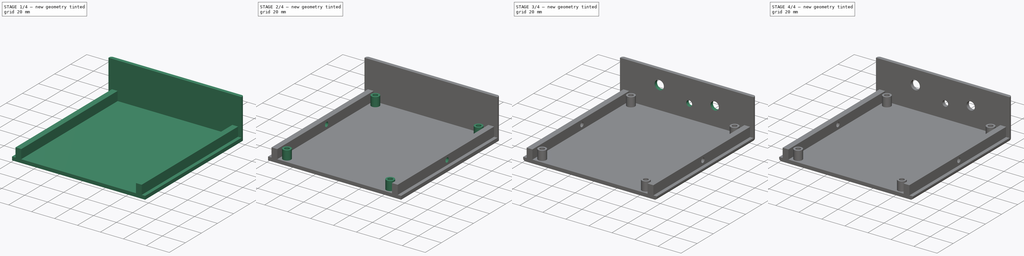
[diagram: build sequence overview — one tinted view per stage of 4, left to right]
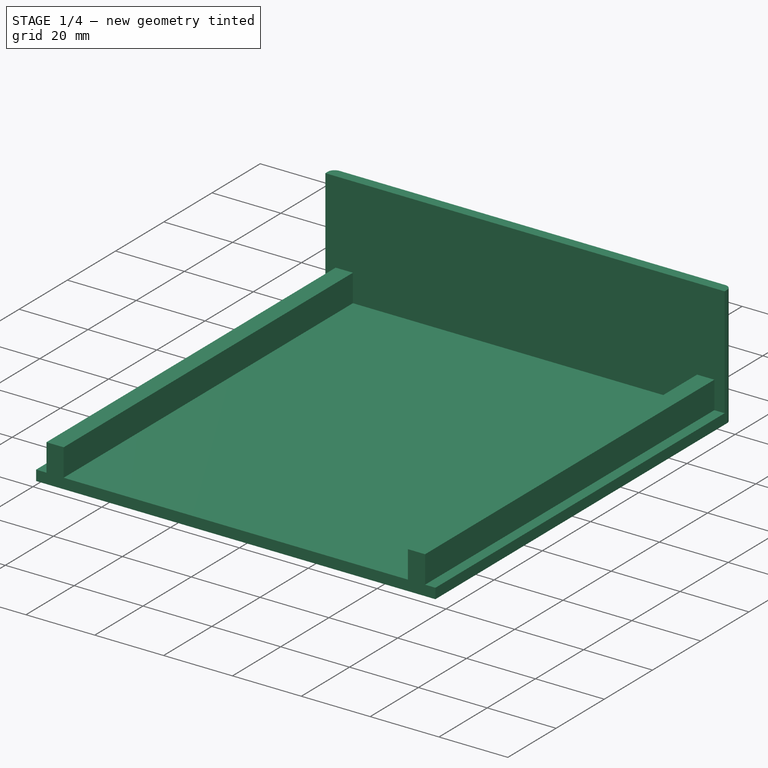
[diagram: stage 1 of 4 — iso view after this stage's code; geometry added in this stage tinted green]
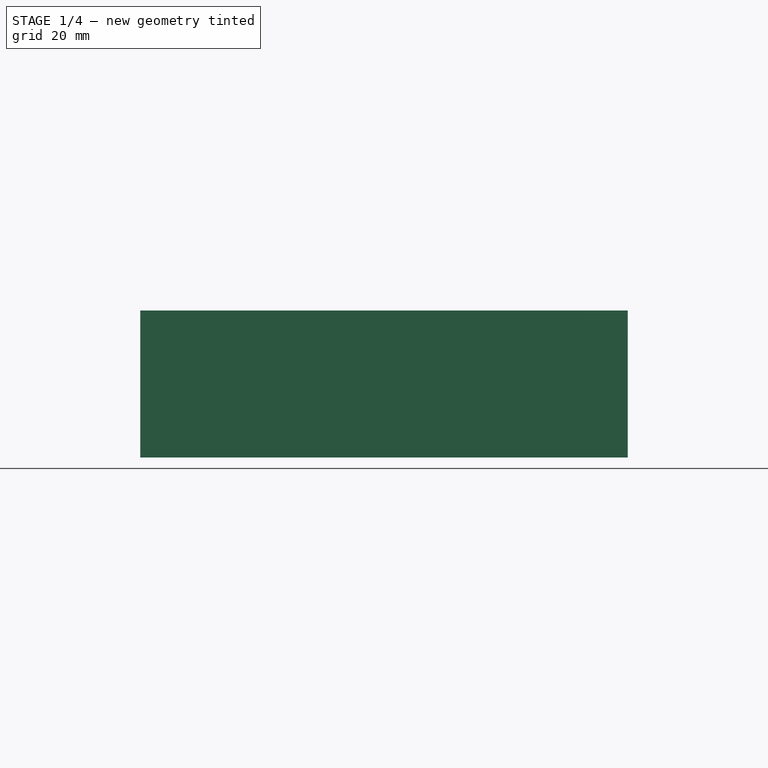
[diagram: stage 1 of 4 — front view after this stage's code; geometry added in this stage tinted green]
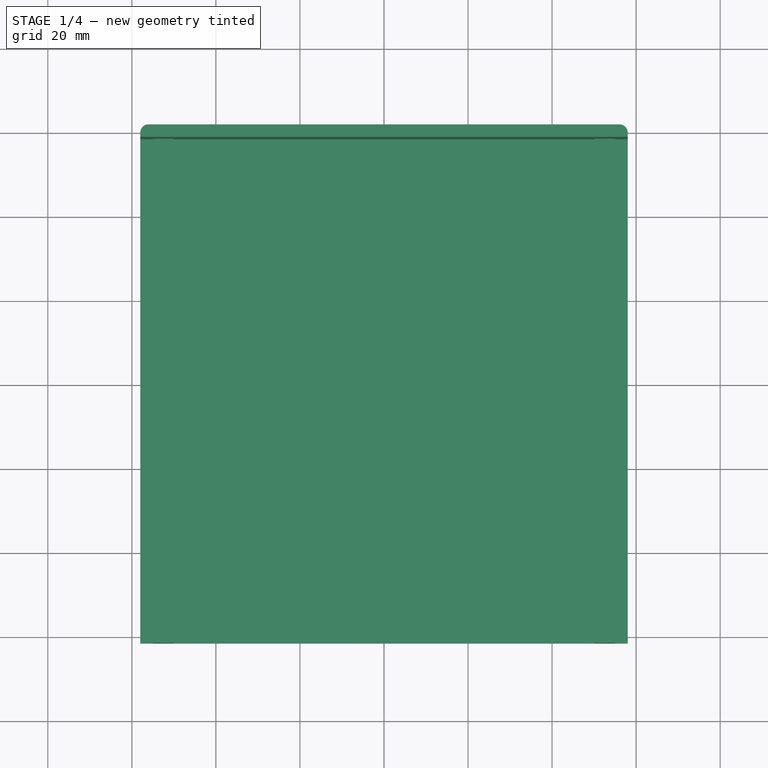
[diagram: stage 1 of 4 — top view after this stage's code; geometry added in this stage tinted green]
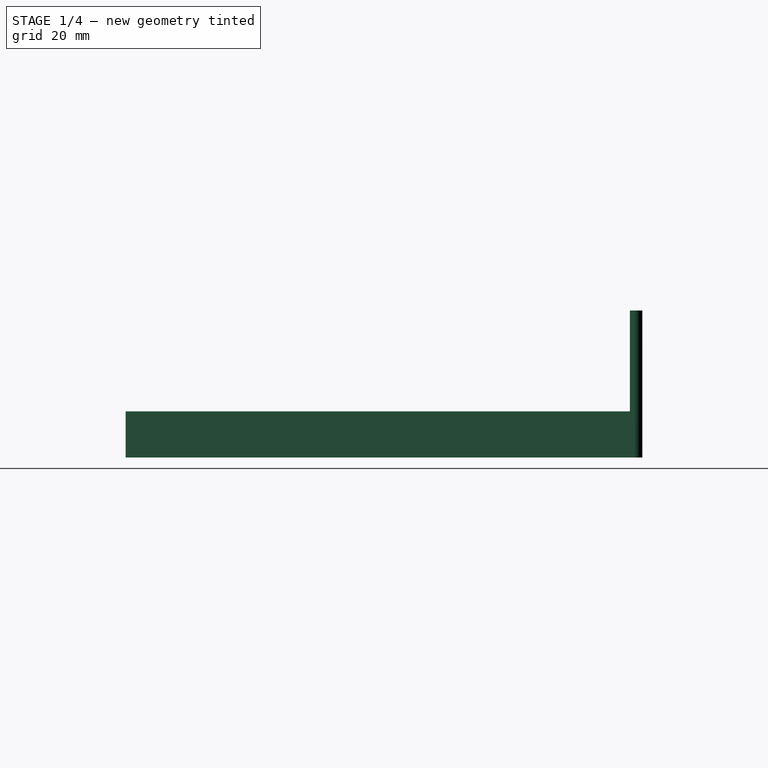
[diagram: stage 1 of 4 — right view after this stage's code; geometry added in this stage tinted green]
FCSTD DOCUMENT  (FreeCAD 0.22R36996 (Git))
Label: PartyLine80CaseBottom
License: All rights reserved
LicenseURL: http://en.wikipedia.org/wiki/All_rights_reserved
objects: PartDesign::Pad×10, Sketcher::SketchObject×9, Part::Part2DObjectPython×4, PartDesign::Pocket×2, PartDesign::Hole×1, PartDesign::Fillet×1, Spreadsheet::Sheet×1, PartDesign::Body×1
note: 42 computed .brp shape members not serialized (recipe doc carries the construction recipe); baked Part::Feature solids carry a one-line shape summary decoded from their .brp

FEATURE [Sketcher::SketchObject] Sketch
  AttachmentSupport = -> [XY_Plane]
  FullyConstrained = true
  MapMode = 5
  expr: Constraints[10] = Spreadsheet.case_width
  expr: Constraints[24] = Spreadsheet.case_radius
  expr: Constraints[9] = Spreadsheet.case_length
  sketch-geometry (11):
    g0: LineSegment StartX=-58 StartY=61.5 StartZ=0 EndX=58 EndY=61.5 EndZ=0
    g1: LineSegment StartX=58 StartY=61.5 StartZ=0 EndX=58 EndY=-61.5 EndZ=0
    g2: LineSegment StartX=58 StartY=-61.5 StartZ=0 EndX=-58 EndY=-61.5 EndZ=0
    g3: LineSegment StartX=-58 StartY=-61.5 StartZ=0 EndX=-58 EndY=61.5 EndZ=0
    g4: ArcOfCircle CenterX=-56 CenterY=59.5 CenterZ=0 NormalX=0 NormalY=0 NormalZ=1 AngleXU=0 Radius=2 StartAngle=1.5708 EndAngle=3.14159
    g5: LineSegment StartX=-56 StartY=61.5 StartZ=0 EndX=56 EndY=61.5 EndZ=0
    g6: ArcOfCircle CenterX=56 CenterY=59.5 CenterZ=0 NormalX=0 NormalY=0 NormalZ=1 AngleXU=0 Radius=2 StartAngle=-1.8e-15 EndAngle=1.5708
    g7: LineSegment StartX=58 StartY=59.5 StartZ=0 EndX=58 EndY=-61.5 EndZ=0
    g8: LineSegment StartX=58 StartY=-61.5 StartZ=0 EndX=-58 EndY=-61.5 EndZ=0
    g9: LineSegment StartX=-58 StartY=-61.5 StartZ=0 EndX=-58 EndY=59.5 EndZ=0
    g10: GeomPoint X=-58 Y=61.5 Z=0
  constraints (28):
    c: Coincident(g0,g1)
    c: Coincident(g1,g2)
    c: Coincident(g2,g3)
    c: Coincident(g3,g0)
    c: Horizontal(g0)
    c: Horizontal(g2)
    c: Vertical(g1)
    c: Vertical(g3)
    c: Symmetric(g2,g0,g-1)
    c: DistanceX(g0,g0) = 116
    c: DistanceY(g2,g0) = 123
    c: Tangent(g4,g5) = 1.5708
    c: Tangent(g5,g6) = 1.5708
    c: Tangent(g6,g7) = 1.5708
    c: Tangent(g9,g4) = 1.5708
    c: Horizontal(g5)
    c: Horizontal(g8)
    c: Vertical(g7)
    c: Vertical(g9)
    c: Equal(g4,g6)
    c: PointOnObject(g10,g5)
    c: PointOnObject(g10,g9)
    c: Coincident(g7,g8)
    c: Coincident(g8,g9)
    c: Radius(g6) = 2
    c: Coincident(g8,g2)
    c: PointOnObject(g5,g0)
    c: PointOnObject(g7,g1)
FEATURE [PartDesign::Pad] Pad  label="Bottom Base"
  Direction = (0,0,1)
  Length = 3
  Length2 = 10
  Profile = -> Sketch
  ReferenceAxis = -> Sketch [N_Axis]
  Suppressed = false
  Type = 0
  expr: Length = Spreadsheet.wall_thickness
FEATURE [Sketcher::SketchObject] Sketch001
  AttachmentSupport = -> [Pad]
  ExternalGeometry = -> [Pad]
  FullyConstrained = true
  MapMode = 5
  Placement = pos=(0,0,3) rot=(0,0,1;0rad)
  expr: Constraints[13] = Spreadsheet.case_radius
  expr: Constraints[15] = Spreadsheet.wall_thickness
  sketch-geometry (6):
    g0: LineSegment StartX=-56 StartY=61.5 StartZ=0 EndX=56 EndY=61.5 EndZ=0
    g1: LineSegment StartX=58 StartY=59.5 StartZ=0 EndX=58 EndY=58.5 EndZ=0
    g2: LineSegment StartX=58 StartY=58.5 StartZ=0 EndX=-58 EndY=58.5 EndZ=0
    g3: LineSegment StartX=-58 StartY=58.5 StartZ=0 EndX=-58 EndY=59.5 EndZ=0
    g4: ArcOfCircle CenterX=-56 CenterY=59.5 CenterZ=0 NormalX=0 NormalY=0 NormalZ=1 AngleXU=0 Radius=2 StartAngle=1.5708 EndAngle=3.14159
    g5: ArcOfCircle CenterX=56 CenterY=59.5 CenterZ=0 NormalX=0 NormalY=0 NormalZ=1 AngleXU=0 Radius=2 StartAngle=-2.22e-14 EndAngle=1.5708
  constraints (16):
    c: Coincident(g1,g2)
    c: Coincident(g2,g3)
    c: Horizontal(g0)
    c: Horizontal(g2)
    c: Vertical(g1)
    c: Vertical(g3)
    c: Tangent(g3,g4) = 1.5708
    c: Tangent(g0,g4) = 1.5708
    c: Tangent(g1,g5) = 1.5708
    c: Tangent(g0,g5) = 1.5708
    c: PointOnObject(g2,g-5)
    c: PointOnObject(g1,g-7)
    c: Equal(g4,g5)
    c: Radius(g5) = 2
    c: PointOnObject(g0,g-3)
    c: DistanceY(g1,g0) = 3
FEATURE [PartDesign::Pad] Pad001  label="Front Panel"
  BaseFeature = -> Pad
  Direction = (0,0,1)
  Length = 32
  Length2 = 10
  Profile = -> Sketch001
  ReferenceAxis = -> Sketch001 [N_Axis]
  Suppressed = false
  Type = 0
  expr: Length = Spreadsheet.case_height - Spreadsheet.wall_thickness
FEATURE [Sketcher::SketchObject] Sketch002
  AttachmentSupport = -> [Pad001]
  ExternalGeometry = -> [Pad001]
  FullyConstrained = true
  MapMode = 5
  Placement = pos=(0,0,3) rot=(0,0,1;0rad)
  expr: Constraints[10] = Spreadsheet.wall_thickness
  expr: Constraints[11] = Spreadsheet.case_width - Spreadsheet.wall_thickness
  expr: Constraints[9] = Spreadsheet.case_lip_thickness
  sketch-geometry (4):
    g0: LineSegment StartX=-55 StartY=-61.5 StartZ=0 EndX=-50 EndY=-61.5 EndZ=0
    g1: LineSegment StartX=-50 StartY=-61.5 StartZ=0 EndX=-50 EndY=58.5 EndZ=0
    g2: LineSegment StartX=-50 StartY=58.5 StartZ=0 EndX=-55 EndY=58.5 EndZ=0
    g3: LineSegment StartX=-55 StartY=58.5 StartZ=0 EndX=-55 EndY=-61.5 EndZ=0
  constraints (12):
    c: Coincident(g0,g1)
    c: Coincident(g1,g2)
    c: Coincident(g2,g3)
    c: Coincident(g3,g0)
    c: Horizontal(g0)
    c: Horizontal(g2)
    c: Vertical(g1)
    c: Vertical(g3)
    c: PointOnObject(g0,g-3)
    c: DistanceX(g0,g0) = 5
    c: DistanceX(g-4,g0) = 3
    c: DistanceY(g0,g2) = 120
FEATURE [PartDesign::Pad] Pad002  label="Right Case Lip"
  BaseFeature = -> Pad001
  Direction = (0,0,1)
  Length = 8
  Length2 = 10
  Profile = -> Sketch002
  ReferenceAxis = -> Sketch002 [N_Axis]
  Suppressed = false
  Type = 0
  expr: Length = Spreadsheet.case_lip_height
FEATURE [Sketcher::SketchObject] Sketch003
  AttachmentSupport = -> [Pad002]
  ExternalGeometry = -> [Pad002]
  FullyConstrained = true
  MapMode = 5
  Placement = pos=(-55,0,0) rot=(0.57735,-0.57735,-0.57735;2.0944rad)
  expr: Constraints[1] = Spreadsheet.mount_hole_diameter
  expr: Constraints[2] = Spreadsheet.case_lip_height / 2
  sketch-geometry (1):
    g0: Circle CenterX=0 CenterY=7 CenterZ=0 NormalX=0 NormalY=0 NormalZ=1 AngleXU=0 Radius=2
  constraints (3):
    c: PointOnObject(g0,g-2)
    c: Diameter(g0) = 4
    c: Distance(g0,g-3) = 4
FEATURE [Sketcher::SketchObject] Sketch004
  AttachmentSupport = -> [Pad002]
  ExternalGeometry = -> [Pad002]
  FullyConstrained = true
  MapMode = 5
  Placement = pos=(0,0,3) rot=(0,0,1;0rad)
  expr: Constraints[10] = Spreadsheet.wall_thickness
  expr: Constraints[11] = Spreadsheet.case_width - Spreadsheet.wall_thickness
  expr: Constraints[9] = Spreadsheet.case_lip_thickness
  sketch-geometry (4):
    g0: LineSegment StartX=50 StartY=-61.5 StartZ=0 EndX=55 EndY=-61.5 EndZ=0
    g1: LineSegment StartX=55 StartY=-61.5 StartZ=0 EndX=55 EndY=58.5 EndZ=0
    g2: LineSegment StartX=55 StartY=58.5 StartZ=0 EndX=50 EndY=58.5 EndZ=0
    g3: LineSegment StartX=50 StartY=58.5 StartZ=0 EndX=50 EndY=-61.5 EndZ=0
  constraints (12):
    c: Coincident(g0,g1)
    c: Coincident(g1,g2)
    c: Coincident(g2,g3)
    c: Coincident(g3,g0)
    c: Horizontal(g0)
    c: Horizontal(g2)
    c: Vertical(g1)
    c: Vertical(g3)
    c: PointOnObject(g0,g-3)
    c: DistanceX(g0,g0) = 5
    c: DistanceX(g0,g-4) = 3
    c: DistanceY(g0,g2) = 120
FEATURE [PartDesign::Pad] Pad003  label="Left Case Lip"
  BaseFeature = -> Pad002
  Direction = (0,0,1)
  Length = 8
  Length2 = 10
  Profile = -> Sketch004
  ReferenceAxis = -> Sketch004 [N_Axis]
  Suppressed = false
  Type = 0
  expr: Length = Spreadsheet.case_lip_height
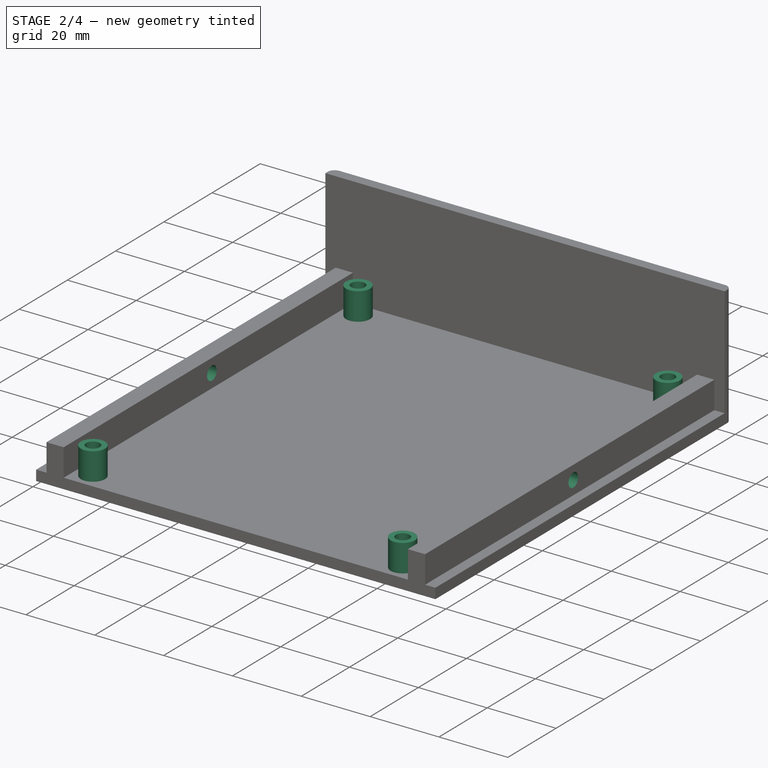
[diagram: stage 2 of 4 — iso view after this stage's code; geometry added in this stage tinted green]
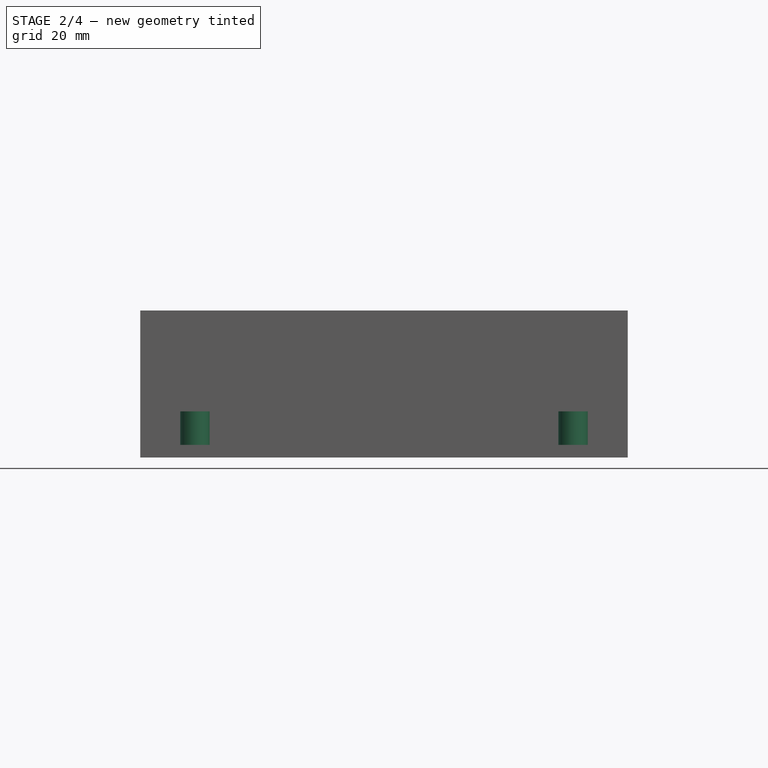
[diagram: stage 2 of 4 — front view after this stage's code; geometry added in this stage tinted green]
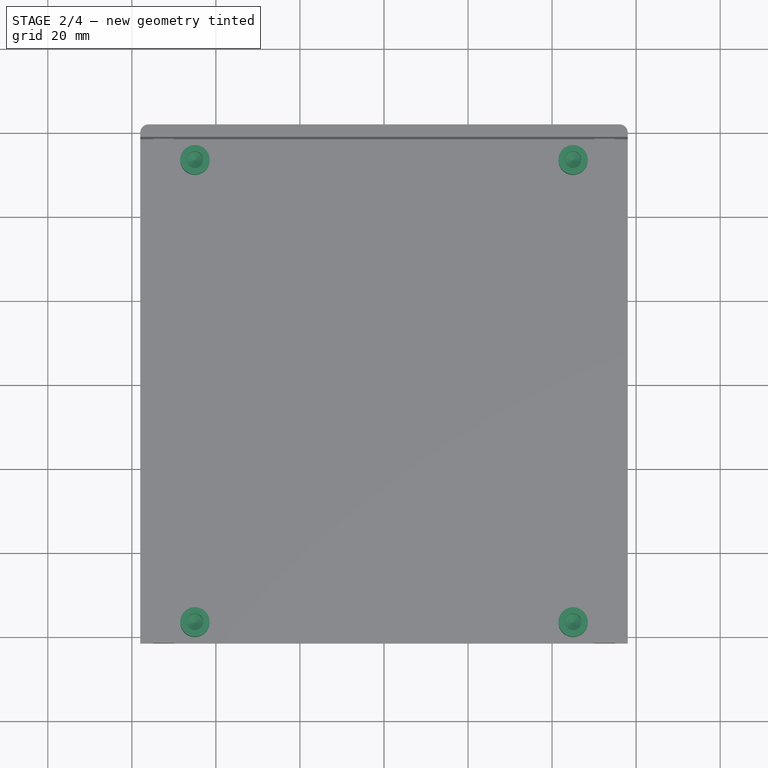
[diagram: stage 2 of 4 — top view after this stage's code; geometry added in this stage tinted green]
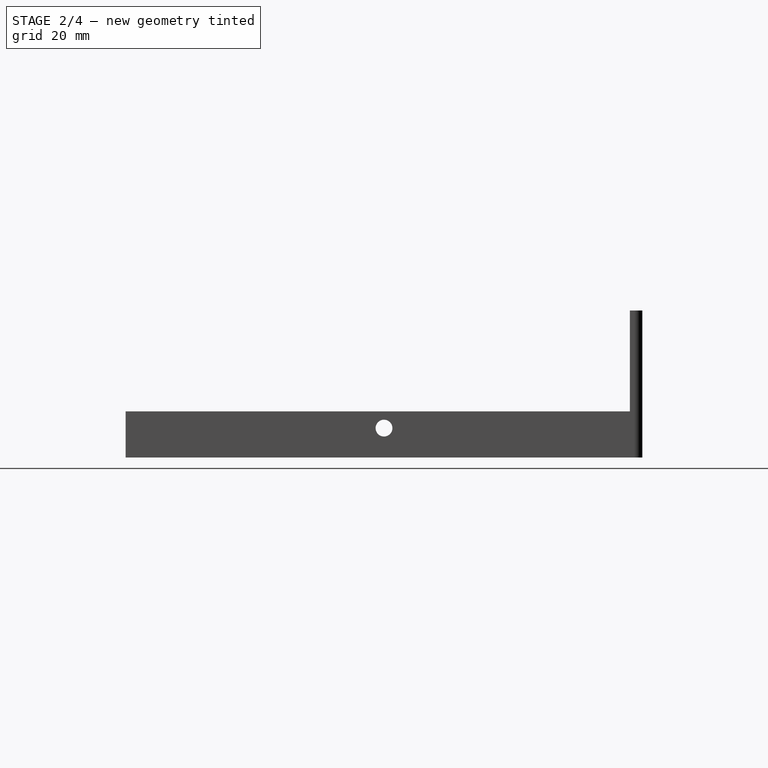
[diagram: stage 2 of 4 — right view after this stage's code; geometry added in this stage tinted green]
FEATURE [PartDesign::Pocket] Pocket  label="Case Mount Holes"
  BaseFeature = -> Pad003
  Direction = (1,0,0)
  Length = 5
  Length2 = 5
  Profile = -> Sketch003
  ReferenceAxis = -> Sketch003 [N_Axis]
  Suppressed = false
  Type = 1
FEATURE [Sketcher::SketchObject] Sketch005
  AttachmentSupport = -> [Pocket]
  ExternalGeometry = -> [Pocket]
  FullyConstrained = true
  MapMode = 5
  Placement = pos=(0,0,3) rot=(0,0,1;0rad)
  expr: Constraints[0] = Spreadsheet.wall_thickness + Spreadsheet.case_lip_thickness + Spreadsheet.board_mount_inset
  expr: Constraints[11] = Spreadsheet.mount_stud_diameter
  expr: Constraints[1] = Spreadsheet.wall_thickness + Spreadsheet.case_lip_thickness + Spreadsheet.board_mount_inset
  expr: Constraints[2] = Spreadsheet.wall_thickness + Spreadsheet.case_lip_thickness + Spreadsheet.board_mount_inset
  expr: Constraints[3] = Spreadsheet.wall_thickness + Spreadsheet.case_lip_thickness + Spreadsheet.board_mount_inset
  expr: Constraints[4] = Spreadsheet.wall_thickness + Spreadsheet.board_mount_inset
  expr: Constraints[5] = Spreadsheet.wall_thickness + Spreadsheet.board_mount_inset
  expr: Constraints[6] = Spreadsheet.board_mount_inset
  expr: Constraints[7] = Spreadsheet.board_mount_inset
  sketch-geometry (4):
    g0: Circle CenterX=-45 CenterY=53.5 CenterZ=0 NormalX=0 NormalY=0 NormalZ=1 AngleXU=0 Radius=3.5
    g1: Circle CenterX=45 CenterY=53.5 CenterZ=0 NormalX=0 NormalY=0 NormalZ=1 AngleXU=0 Radius=3.5
    g2: Circle CenterX=-45 CenterY=-56.5 CenterZ=0 NormalX=0 NormalY=0 NormalZ=1 AngleXU=0 Radius=3.5
    g3: Circle CenterX=45 CenterY=-56.5 CenterZ=0 NormalX=0 NormalY=0 NormalZ=1 AngleXU=0 Radius=3.5
  constraints (12):
    c: Distance(g0,g-4) = 13
    c: Distance(g1,g-6) = 13
    c: Distance(g3,g-6) = 13
    c: Distance(g2,g-4) = 13
    c: Distance(g0,g-3) = 8
    c: Distance(g1,g-3) = 8
    c: Distance(g2,g-5) = 5
    c: Distance(g3,g-5) = 5
    c: Equal(g0,g1)
    c: Equal(g1,g3)
    c: Equal(g3,g2)
    c: Diameter(g0) = 7
FEATURE [PartDesign::Pad] Pad004  label="Board Mount Studs"
  BaseFeature = -> Pocket
  Direction = (0,0,1)
  Length = 8
  Length2 = 10
  Profile = -> Sketch005
  ReferenceAxis = -> Sketch005 [N_Axis]
  Suppressed = false
  Type = 0
  expr: Length = Spreadsheet.mount_stud_height
FEATURE [Sketcher::SketchObject] Sketch006
  AttachmentSupport = -> [Pad004]
  ExternalGeometry = -> [Pad004]
  FullyConstrained = true
  MapMode = 5
  Placement = pos=(0,0,11) rot=(0,0,1;0rad)
  expr: Constraints[7] = Spreadsheet.mount_hole_diameter
  sketch-geometry (4):
    g0: Circle CenterX=-45 CenterY=53.5 CenterZ=0 NormalX=0 NormalY=0 NormalZ=1 AngleXU=0 Radius=2
    g1: Circle CenterX=-45 CenterY=-56.5 CenterZ=0 NormalX=0 NormalY=0 NormalZ=1 AngleXU=0 Radius=2
    g2: Circle CenterX=45 CenterY=-56.5 CenterZ=0 NormalX=0 NormalY=0 NormalZ=1 AngleXU=0 Radius=2
    g3: Circle CenterX=45 CenterY=53.5 CenterZ=0 NormalX=0 NormalY=0 NormalZ=1 AngleXU=0 Radius=2
  constraints (8):
    c: Coincident(g0,g-3)
    c: Coincident(g1,g-4)
    c: Coincident(g2,g-5)
    c: Coincident(g3,g-6)
    c: Equal(g0,g3)
    c: Equal(g3,g2)
    c: Equal(g2,g1)
    c: Diameter(g0) = 4
FEATURE [PartDesign::Hole] Hole  label="Board Mount Holes"
  BaseFeature = -> Pad004
  CustomThreadClearance = 0
  Depth = 5
  DepthType = 0
  Diameter = 4
  DrillForDepth = false
  DrillPoint = 1
  DrillPointAngle = 118
  HoleCutCountersinkAngle = 90
  HoleCutCustomValues = false
  HoleCutDepth = 0
  HoleCutDiameter = 6.1
  HoleCutType = 0
  ModelThread = false
  Profile = -> Sketch006
  Suppressed = false
  Tapered = false
  TaperedAngle = 90
  ThreadClass = 0
  ThreadDepth = 5
  ThreadDepthType = 0
  ThreadDirection = 0
  ThreadFit = 0
  ThreadSize = 0
  ThreadType = 0
  Threaded = false
  UseCustomThreadClearance = false
  expr: Depth = Spreadsheet.mount_hole_depth
  expr: Diameter = Spreadsheet.mount_hole_diameter
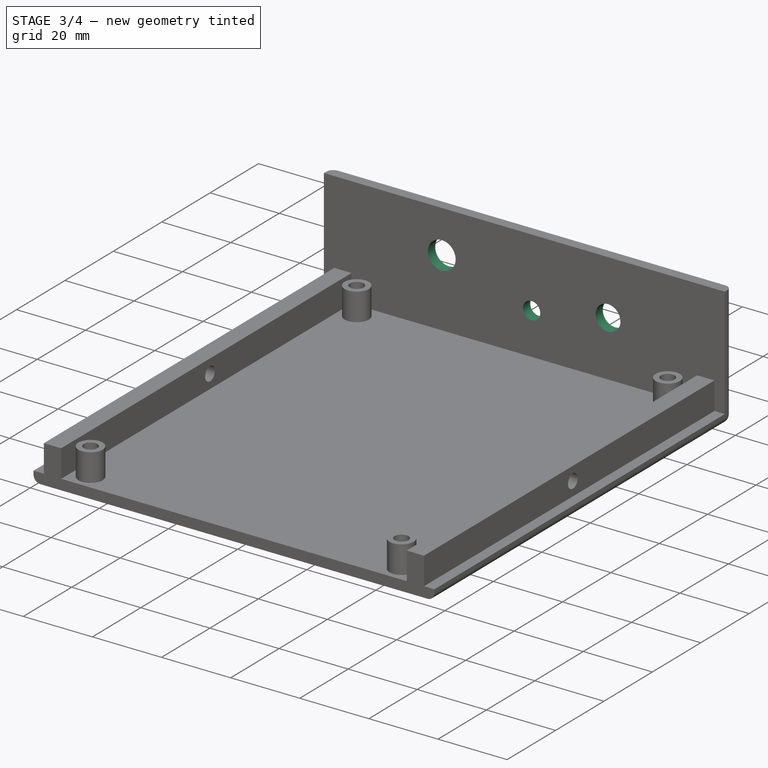
[diagram: stage 3 of 4 — iso view after this stage's code; geometry added in this stage tinted green]
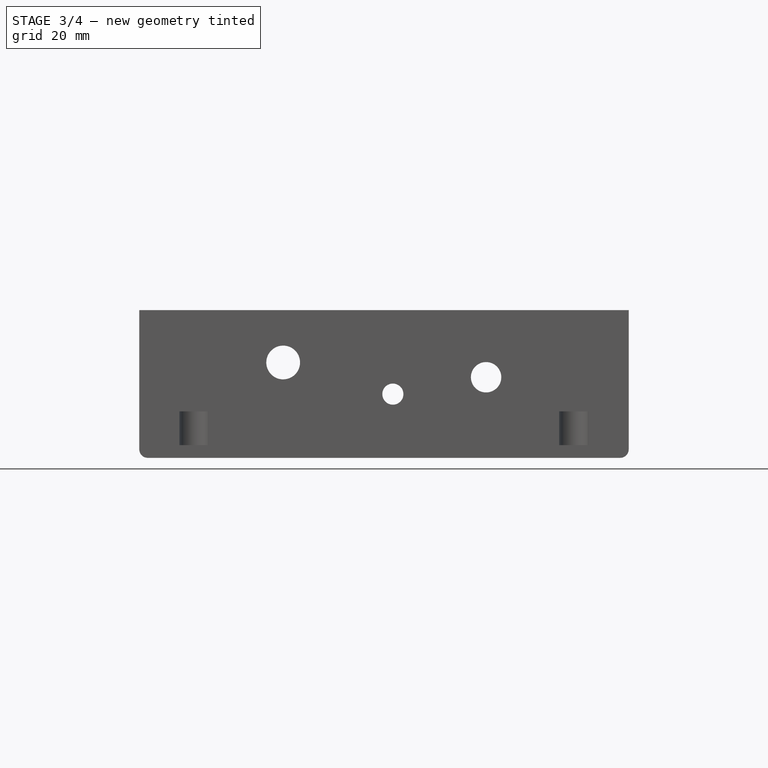
[diagram: stage 3 of 4 — front view after this stage's code; geometry added in this stage tinted green]
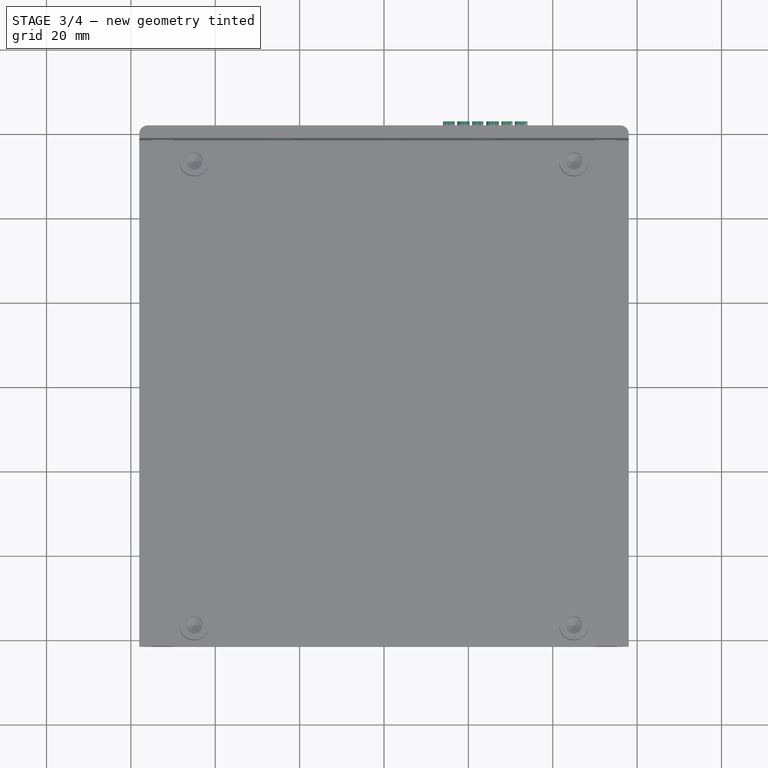
[diagram: stage 3 of 4 — top view after this stage's code; geometry added in this stage tinted green]
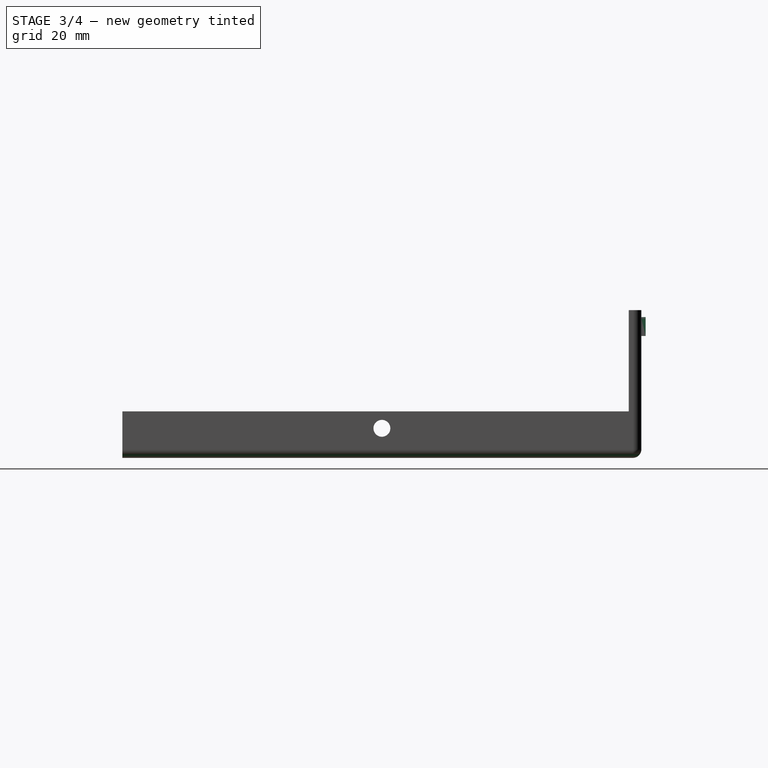
[diagram: stage 3 of 4 — right view after this stage's code; geometry added in this stage tinted green]
FEATURE [PartDesign::Fillet] Fillet
  Base = -> Hole [Edge13,Edge14,Edge6,Edge3,Edge9]
  BaseFeature = -> Hole
  Radius = 2
  SupportTransform = false
  Suppressed = false
  UseAllEdges = false
  expr: Radius = Spreadsheet.case_fillet_radius
FEATURE [Spreadsheet::Sheet] Spreadsheet
  cells = A1='board_length; B1(board_length)=100; A2='board_width; B2(board_width)=120; A3='case_height; B3(case_height)=35; A4='wall_thickness; B4(wall_thickness)=3; A5='board_mount_inset; B5(board_mount_inset)=5; A6='case_radius; B6(case_radius)=2; A7='mount_hole_diameter; B7(mount_hole_diameter)=4; A8='mount_hole_depth; B8(mount_hole_depth)=5; A9='case_hole_diameter; B9(case_hole_diameter)=4; A10='case_hole_depth; B10(case_hole_depth)=5; A11='mount_stud_height; B11(mount_stud_height)=8; A12='case_clearance_hole; B12(case_clearance_hole)=3.5; A14='case_length; B14(case_length)==board_length + (wall_thickness + case_lip_thickness) * 2; A15='case_width; B15(case_width)==board_width + wall_thickness; A16='case_lip_height; B16(case_lip_height)==case_hole_diameter + 4; A17='case_lip_thickness; B17(case_lip_thickness)==case_hole_depth; A18='mount_stud_diameter; B18(mount_stud_diameter)==mount_hole_diameter + 3; A19='case_fillet_radius; B19(case_fillet_radius)==case_radius
FEATURE [Sketcher::SketchObject] Sketch007
  AttachmentSupport = -> [Fillet]
  FullyConstrained = true
  MapMode = 5
  Placement = pos=(0,61.5,0) rot=(0,0.707107,0.707107;3.14159rad)
  sketch-geometry (3):
    g0: Circle CenterX=23.9 CenterY=22.6 CenterZ=0 NormalX=0 NormalY=0 NormalZ=1 AngleXU=0 Radius=4
    g1: Circle CenterX=-2.1 CenterY=15.1 CenterZ=0 NormalX=0 NormalY=0 NormalZ=1 AngleXU=0 Radius=2.5
    g2: Circle CenterX=-24.2 CenterY=19.1 CenterZ=0 NormalX=0 NormalY=0 NormalZ=1 AngleXU=0 Radius=3.6
  constraints (9):
    c: Diameter(g0) = 8
    c: Diameter(g1) = 5
    c: Diameter(g2) = 7.2
    c: DistanceX(g-1,g0) = 23.9
    c: DistanceY(g-1,g0) = 22.6
    c: Distance(g1,g-1) = 15.1
    c: DistanceX(g1,g-1) = 2.1
    c: Distance(g2,g-2) = 24.2
    c: Distance(g2,g-1) = 19.1
FEATURE [PartDesign::Pocket] Pocket001
  BaseFeature = -> Fillet
  Direction = (0,-1,2e-16)
  Length = 5
  Length2 = 5
  Profile = -> Sketch007
  ReferenceAxis = -> Sketch007 [N_Axis]
  Suppressed = false
  Type = 1
FEATURE [Part::Part2DObjectPython] ShapeString  # Draft 2D object (typed FeaturePython)
  FontFile = <path>
  Fuse = false
  Justification = 6
  JustificationReference = 0
  KeepLeftMargin = false
  MakeFace = true
  ObliqueAngle = 0
  Placement = pos=(34,61.5,29) rot=(0,0.707107,0.707107;3.14159rad)
  ScaleToSize = true
  Size = 4
  String = Phones
  Tracking = 0
FEATURE [Part::Part2DObjectPython] ShapeString001  # Draft 2D object (typed FeaturePython)
  FontFile = <path>
  Fuse = false
  Justification = 6
  JustificationReference = 0
  KeepLeftMargin = false
  MakeFace = true
  ObliqueAngle = 0
  Placement = pos=(6.97,61.5,20.98) rot=(0,0.707107,0.707107;3.14159rad)
  ScaleToSize = true
  Size = 4
  String = Pwr
  Tracking = 0
FEATURE [Part::Part2DObjectPython] ShapeString002  # Draft 2D object (typed FeaturePython)
  FontFile = <path>
  Fuse = false
  Justification = 6
  JustificationReference = 0
  KeepLeftMargin = false
  MakeFace = true
  ObliqueAngle = 0
  Placement = pos=(-12,61.5,29) rot=(0,0.707107,0.707107;3.14159rad)
  ScaleToSize = true
  Size = 4
  String = AF Gain
  Tracking = 0
FEATURE [PartDesign::Pad] Pad005
  BaseFeature = -> Pocket001
  Direction = (1e-16,1,-2e-16)
  Length = 1
  Length2 = 10
  Profile = -> ShapeString
  ReferenceAxis = -> ShapeString [N_Axis]
  Suppressed = false
  Type = 0
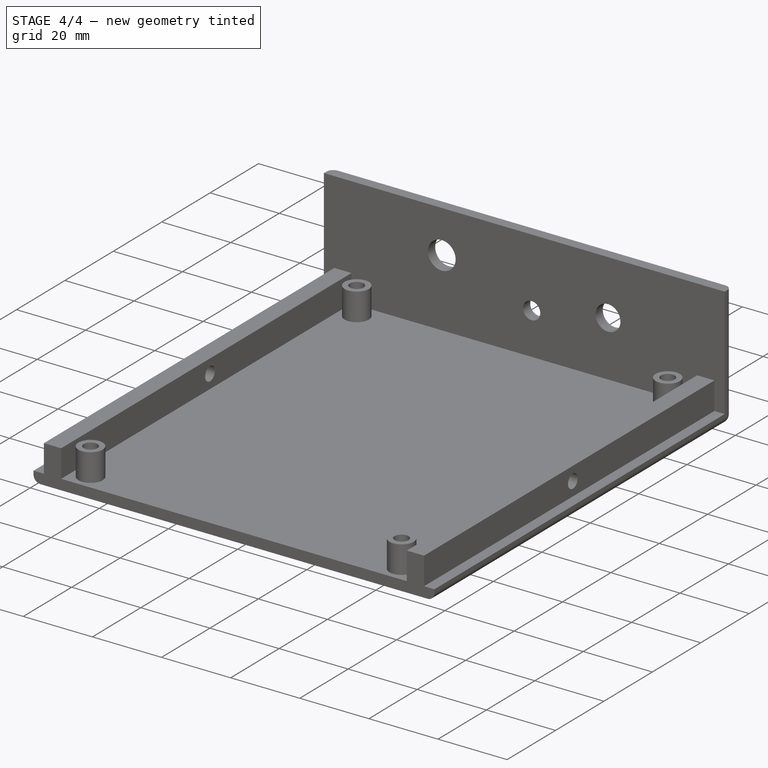
[diagram: stage 4 of 4 — iso view after this stage's code; geometry added in this stage tinted green]
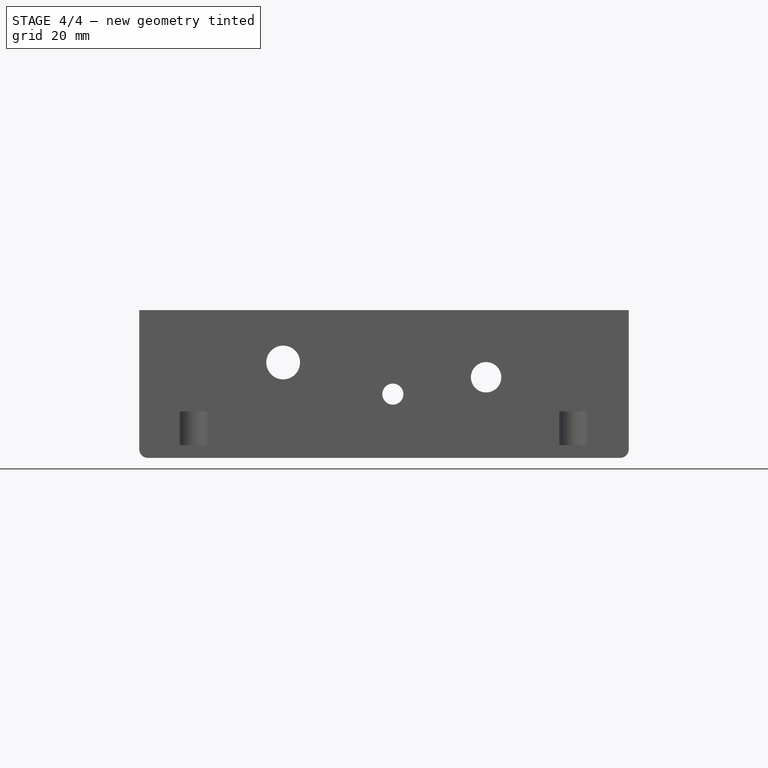
[diagram: stage 4 of 4 — front view after this stage's code; geometry added in this stage tinted green]
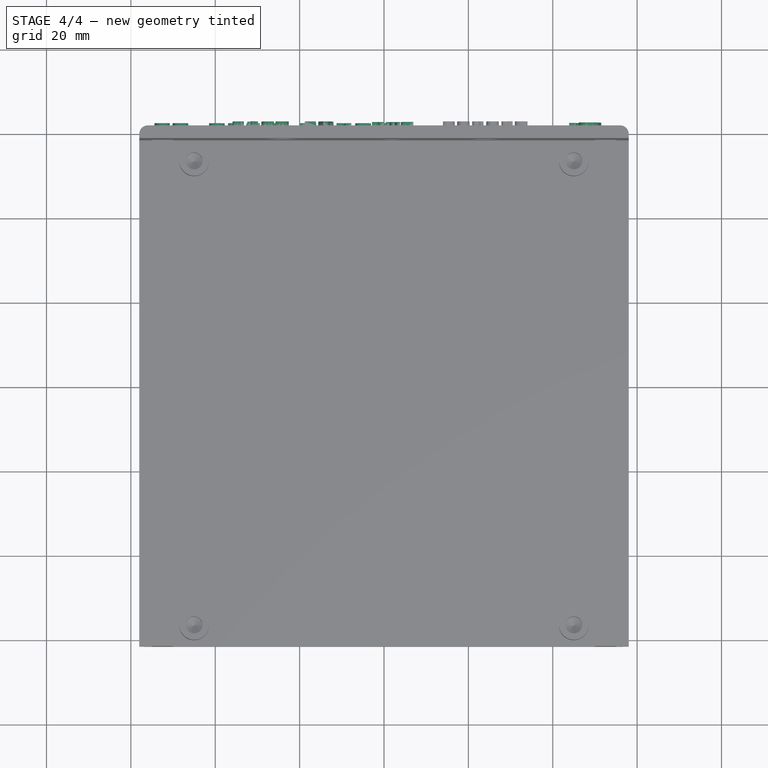
[diagram: stage 4 of 4 — top view after this stage's code; geometry added in this stage tinted green]
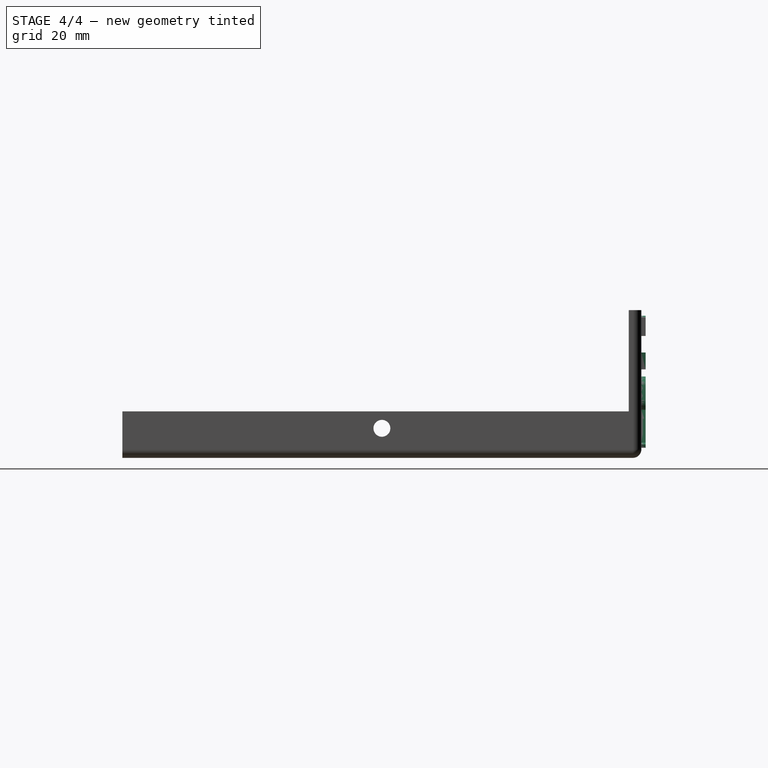
[diagram: stage 4 of 4 — right view after this stage's code; geometry added in this stage tinted green]
FEATURE [PartDesign::Pad] Pad006
  BaseFeature = -> Pad005
  Direction = (0,1,-2e-16)
  Length = 1
  Length2 = 10
  Profile = -> ShapeString001
  ReferenceAxis = -> ShapeString001 [N_Axis]
  Suppressed = false
  Type = 0
FEATURE [PartDesign::Pad] Pad007
  BaseFeature = -> Pad006
  Direction = (1e-16,1,-2e-16)
  Length = 1
  Length2 = 10
  Profile = -> ShapeString002
  ReferenceAxis = -> ShapeString002 [N_Axis]
  Suppressed = false
  Type = 0
FEATURE [Sketcher::SketchObject] Sketch011
  AttachmentSupport = -> [Pad007]
  FullyConstrained = false
  Placement = pos=(53.9387,61.5,23.9621) rot=(1,0,0;4.71239rad)
  sketch-geometry (45):
    g0: BSplineCurve PolesCount=4 KnotsCount=2 Degree=3 IsPeriodic=0
    g1: BSplineCurve PolesCount=4 KnotsCount=2 Degree=3 IsPeriodic=0
    g2: BSplineCurve PolesCount=4 KnotsCount=2 Degree=3 IsPeriodic=0
    g3: BSplineCurve PolesCount=4 KnotsCount=2 Degree=3 IsPeriodic=0
    g4: BSplineCurve PolesCount=4 KnotsCount=2 Degree=3 IsPeriodic=0
    g5: BSplineCurve PolesCount=4 KnotsCount=2 Degree=3 IsPeriodic=0
    g6: BSplineCurve PolesCount=4 KnotsCount=2 Degree=3 IsPeriodic=0
    g7: BSplineCurve PolesCount=4 KnotsCount=2 Degree=3 IsPeriodic=0
    g8: BSplineCurve PolesCount=2 KnotsCount=2 Degree=1 IsPeriodic=0
    g9: BSplineCurve PolesCount=2 KnotsCount=2 Degree=1 IsPeriodic=0
    g10: BSplineCurve PolesCount=2 KnotsCount=2 Degree=1 IsPeriodic=0
    g11: BSplineCurve PolesCount=2 KnotsCount=2 Degree=1 IsPeriodic=0
    g12: BSplineCurve PolesCount=4 KnotsCount=2 Degree=3 IsPeriodic=0
    g13: BSplineCurve PolesCount=4 KnotsCount=2 Degree=3 IsPeriodic=0
    g14: BSplineCurve PolesCount=4 KnotsCount=2 Degree=3 IsPeriodic=0
    g15: BSplineCurve PolesCount=2 KnotsCount=2 Degree=1 IsPeriodic=0
    g16: BSplineCurve PolesCount=2 KnotsCount=2 Degree=1 IsPeriodic=0
    g17: BSplineCurve PolesCount=2 KnotsCount=2 Degree=1 IsPeriodic=0
    g18: BSplineCurve PolesCount=2 KnotsCount=2 Degree=1 IsPeriodic=0
    g19: BSplineCurve PolesCount=4 KnotsCount=2 Degree=3 IsPeriodic=0
    g20: BSplineCurve PolesCount=4 KnotsCount=2 Degree=3 IsPeriodic=0
    g21: BSplineCurve PolesCount=2 KnotsCount=2 Degree=1 IsPeriodic=0
    g22: BSplineCurve PolesCount=2 KnotsCount=2 Degree=1 IsPeriodic=0
    g23: BSplineCurve PolesCount=4 KnotsCount=2 Degree=3 IsPeriodic=0
    g24: BSplineCurve PolesCount=4 KnotsCount=2 Degree=3 IsPeriodic=0
    g25: BSplineCurve PolesCount=4 KnotsCount=2 Degree=3 IsPeriodic=0
    g26: BSplineCurve PolesCount=4 KnotsCount=2 Degree=3 IsPeriodic=0
    g27: BSplineCurve PolesCount=4 KnotsCount=2 Degree=3 IsPeriodic=0
    g28: BSplineCurve PolesCount=2 KnotsCount=2 Degree=1 IsPeriodic=0
    g29: BSplineCurve PolesCount=2 KnotsCount=2 Degree=1 IsPeriodic=0
    g30: BSplineCurve PolesCount=4 KnotsCount=2 Degree=3 IsPeriodic=0
    g31: BSplineCurve PolesCount=4 KnotsCount=2 Degree=3 IsPeriodic=0
    g32: BSplineCurve PolesCount=2 KnotsCount=2 Degree=1 IsPeriodic=0
    g33: BSplineCurve PolesCount=2 KnotsCount=2 Degree=1 IsPeriodic=0
    g34: BSplineCurve PolesCount=2 KnotsCount=2 Degree=1 IsPeriodic=0
    g35: BSplineCurve PolesCount=2 KnotsCount=2 Degree=1 IsPeriodic=0
    g36: BSplineCurve PolesCount=4 KnotsCount=2 Degree=3 IsPeriodic=0
    g37: BSplineCurve PolesCount=2 KnotsCount=2 Degree=1 IsPeriodic=0
    g38: BSplineCurve PolesCount=4 KnotsCount=2 Degree=3 IsPeriodic=0
    g39: BSplineCurve PolesCount=4 KnotsCount=2 Degree=3 IsPeriodic=0
    g40: BSplineCurve PolesCount=4 KnotsCount=2 Degree=3 IsPeriodic=0
    g41: BSplineCurve PolesCount=4 KnotsCount=2 Degree=3 IsPeriodic=0
    g42: BSplineCurve PolesCount=4 KnotsCount=2 Degree=3 IsPeriodic=0
    g43: BSplineCurve PolesCount=2 KnotsCount=2 Degree=1 IsPeriodic=0
    g44: BSplineCurve PolesCount=2 KnotsCount=2 Degree=1 IsPeriodic=0
  constraints (45):
    c: Coincident(g0,g1)
    c: Coincident(g1,g2)
    c: Coincident(g2,g3)
    c: Coincident(g3,g4)
    c: Coincident(g4,g5)
    c: Coincident(g5,g6)
    c: Coincident(g6,g7)
    c: Coincident(g7,g8)
    c: Coincident(g8,g9)
    c: Coincident(g9,g10)
    c: Coincident(g10,g11)
    c: Coincident(g11,g12)
    c: Coincident(g12,g13)
    c: Coincident(g13,g14)
    c: Coincident(g14,g15)
    c: Coincident(g15,g16)
    c: Coincident(g16,g17)
    c: Coincident(g17,g18)
    c: Coincident(g18,g19)
    c: Coincident(g19,g20)
    c: Coincident(g20,g21)
    c: Coincident(g21,g22)
    c: Coincident(g22,g23)
    c: Coincident(g23,g24)
    c: Coincident(g24,g25)
    c: Coincident(g25,g26)
    c: Coincident(g26,g27)
    c: Coincident(g27,g28)
    c: Coincident(g28,g29)
    c: Coincident(g29,g30)
    c: Coincident(g30,g31)
    c: Coincident(g31,g32)
    c: Coincident(g32,g33)
    c: Coincident(g33,g34)
    c: Coincident(g34,g35)
    c: Coincident(g35,g36)
    c: Coincident(g36,g37)
    c: Coincident(g37,g0)
    c: Coincident(g38,g39)
    c: Coincident(g39,g40)
    c: Coincident(g40,g41)
    c: Coincident(g41,g42)
    c: Coincident(g42,g43)
    c: Coincident(g43,g44)
    c: Coincident(g44,g38)
FEATURE [PartDesign::Pad] Pad008
  BaseFeature = -> Pad007
  Direction = (0,1,-2e-16)
  Length = 1
  Length2 = 10
  Profile = -> Sketch011
  ReferenceAxis = -> Sketch011 [N_Axis]
  Suppressed = false
  Type = 0
FEATURE [Part::Part2DObjectPython] ShapeString003  # Draft 2D object (typed FeaturePython)
  FontFile = <path>
  Fuse = false
  Justification = 6
  JustificationReference = 0
  KeepLeftMargin = false
  MakeFace = true
  ObliqueAngle = 0
  Placement = pos=(1,61.5,4) rot=(0,0.707107,0.707107;3.14159rad)
  ScaleToSize = true
  Size = 5
  String = Party Line 80
  Tracking = 0
FEATURE [PartDesign::Pad] Pad009
  BaseFeature = -> Pad008
  Direction = (1e-16,1,-2e-16)
  Length = 1
  Length2 = 10
  Profile = -> ShapeString003
  ReferenceAxis = -> ShapeString003 [N_Axis]
  Suppressed = false
  Type = 0
FEATURE [PartDesign::Body] Body  label="Case Bottom"
  Group = -> [Sketch,Pad,Sketch001,Pad001,Sketch002,Pad002,Sketch004,Pad003,Sketch003,Pocket,Sketch005,Pad004,Sketch006,Hole,Fillet,Sketch007,Pocket001,ShapeString,ShapeString001,ShapeString002,Pad005,Pad006,Pad007,Sketch011,Pad008,ShapeString003,Pad009]
  Origin = -> Origin
  Tip = -> Pad009
note: 4 file-system paths scrubbed to <path> (originals preserved in the JSON sidecar)
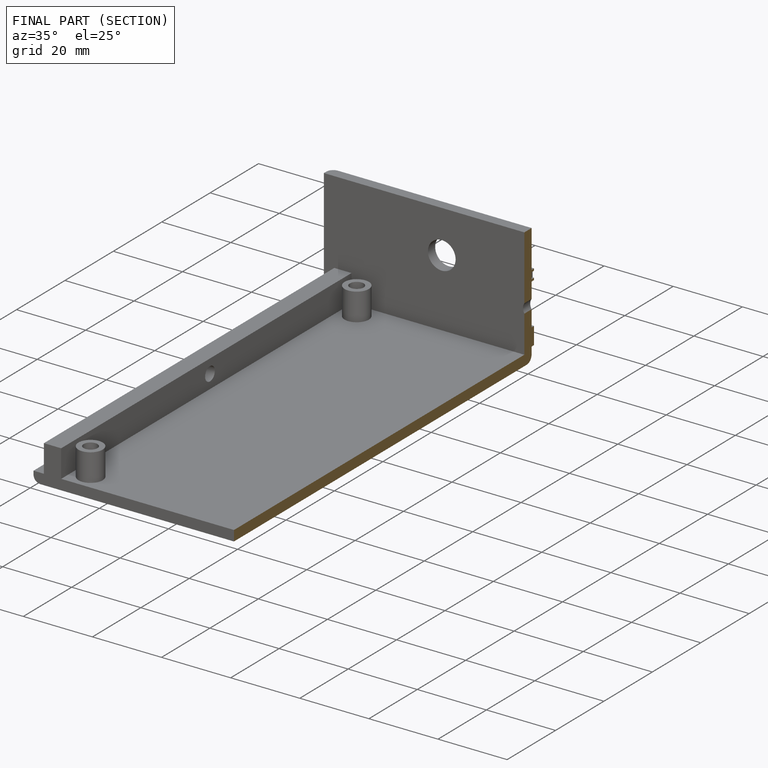
[diagram: finished part — half-section view (interior)]
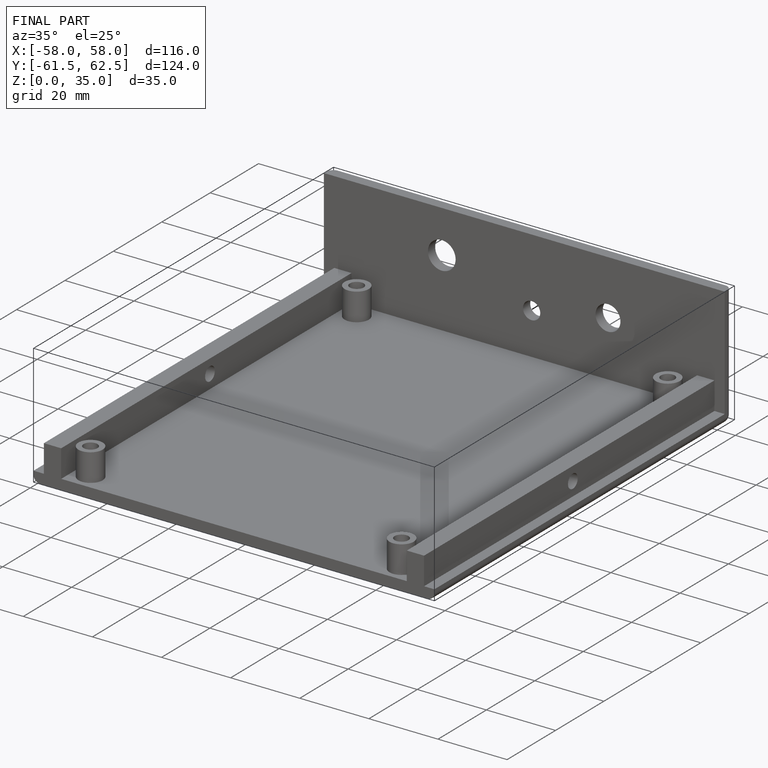
[diagram: finished part — iso view with bounding-box wireframe]
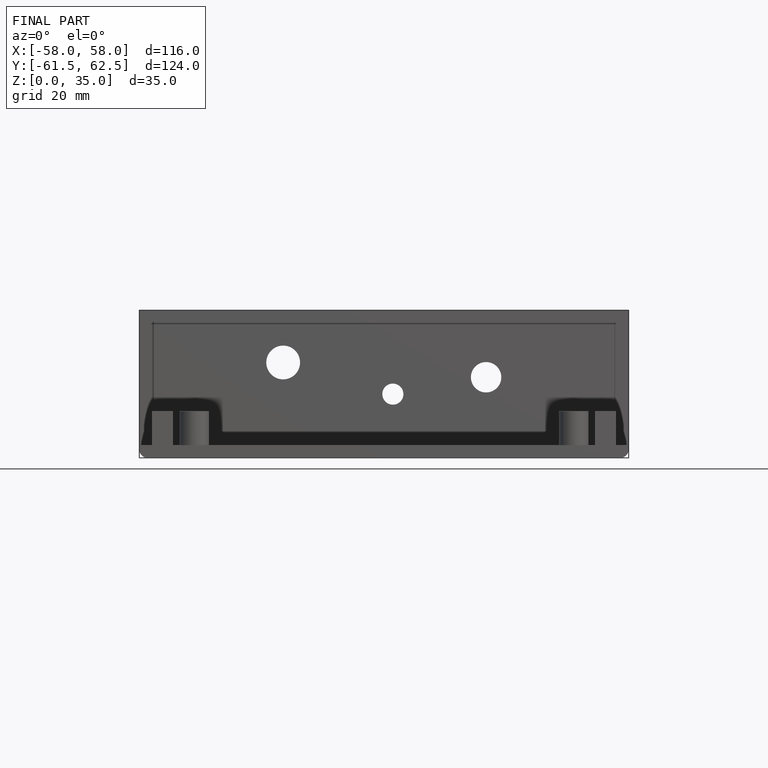
[diagram: finished part — front view with bounding-box wireframe]
